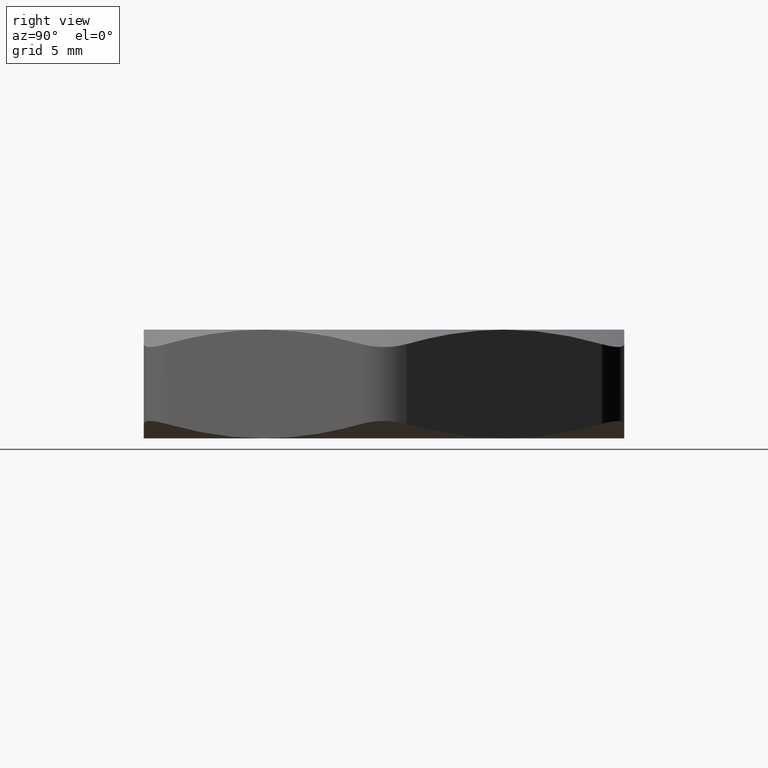
[diagram: clean part render]
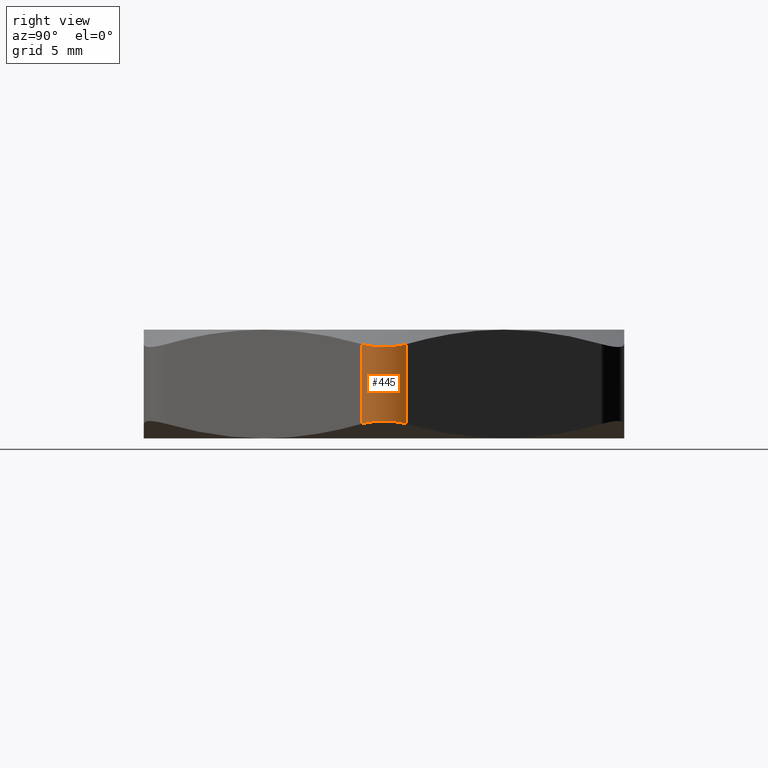
[diagram: same view with one face highlighted and labeled with its STEP entity id]
A machine part, right view. The second image highlights one B-rep face of the part: STEP entity #445.
In plain terms, the highlighted cylindrical surface (partial cylindrical patch) has radius 2.54 mm, axis along (0, 0, -1).
Its self-contained STEP definition (entity closure, byte-faithful):
#1 = CARTESIAN_POINT ( 'NONE',  ( 0.5908234888868638700, -0.03439200849698383100, 0.03565869395154949000 ) ) ;
#2 = CARTESIAN_POINT ( 'NONE',  ( 0.5831237718815220900, -0.04999999999999969700, 0.03190638126214311000 ) ) ;
#3 = CARTESIAN_POINT ( 'NONE',  ( 0.5874406010192594300, -0.04252303260584556300, 0.03402079823101471200 ) ) ;
#5 = CARTESIAN_POINT ( 'NONE',  ( 0.5831237718815220900, 0.05000000000000029400, 0.03190638126214313100 ) ) ;
#6 = CARTESIAN_POINT ( 'NONE',  ( 0.5965283244641871300, -0.008697293206108909500, 0.03840945953749355700 ) ) ;
#7 = CARTESIAN_POINT ( 'NONE',  ( 0.5874395021602044600, 0.04252493588555866100, 0.03402026000118036500 ) ) ;
#8 = CARTESIAN_POINT ( 'NONE',  ( 0.5953466426528969400, -0.01758590649365708900, 0.03784285670303592200 ) ) ;
#9 = CARTESIAN_POINT ( 'NONE',  ( 0.5965140726484460300, 0.008859642843939530300, 0.03840261062670125000 ) ) ;
#10 = CARTESIAN_POINT ( 'NONE',  ( 0.5907632841882644000, 0.03457021354705971900, 0.03562956727663186400 ) ) ;
#11 = CARTESIAN_POINT ( 'NONE',  ( 0.5953370249125271600, 0.01766644083758153700, 0.03783826634577652800 ) ) ;
#212 = EDGE_CURVE ( 'NONE', #1511, #213, #1307, .T. ) ;
#213 = VERTEX_POINT ( 'NONE', #1303 ) ;
#222 = VERTEX_POINT ( 'NONE', #1526 ) ;
#224 = EDGE_CURVE ( 'NONE', #222, #225, #1532, .T. ) ;
#225 = VERTEX_POINT ( 'NONE', #1528 ) ;
#428 = ORIENTED_EDGE ( 'NONE', *, *, #478, .F. ) ;
#429 = ORIENTED_EDGE ( 'NONE', *, *, #224, .F. ) ;
#430 = ORIENTED_EDGE ( 'NONE', *, *, #451, .F. ) ;
#431 = ORIENTED_EDGE ( 'NONE', *, *, #212, .F. ) ;
#432 = ORIENTED_EDGE ( 'NONE', *, *, #1506, .F. ) ;
#445 = ADVANCED_FACE ( 'NONE', ( #2312 ), #1266, .T. ) ;
#446 = EDGE_LOOP ( 'NONE', ( #428, #429, #430, #431, #432 ) ) ;
#451 = EDGE_CURVE ( 'NONE', #213, #222, #2528, .T. ) ;
#478 = EDGE_CURVE ( 'NONE', #225, #2287, #1794, .T. ) ;
#1263 = CARTESIAN_POINT ( 'NONE',  ( 0.5965212315030782300, -3.403670817143060400E-025, 0.2015939490848726600 ) ) ;
#1266 = CYLINDRICAL_SURFACE ( 'NONE', #1431, 0.1000000000000000200 ) ;
#1303 = CARTESIAN_POINT ( 'NONE',  ( 0.5831237718815220900, 0.05000000000000029400, 0.03190638126214313100 ) ) ;
#1304 = DIRECTION ( 'NONE',  ( 0.0000000000000000000, 0.0000000000000000000, -1.000000000000000000 ) ) ;
#1305 = VECTOR ( 'NONE', #1304, 39.37007874015748100 ) ;
#1306 = CARTESIAN_POINT ( 'NONE',  ( 0.5831237718815220900, 0.05000000000000032200, 0.2399999999999999900 ) ) ;
#1307 = LINE ( 'NONE', #1306, #1305 ) ;
#1334 = DIRECTION ( 'NONE',  ( -1.000000000000000000, 0.0000000000000000000, 0.0000000000000000000 ) ) ;
#1406 = DIRECTION ( 'NONE',  ( 0.0000000000000000000, 0.0000000000000000000, -1.000000000000000000 ) ) ;
#1431 = AXIS2_PLACEMENT_3D ( 'NONE', #1482, #1406, #1334 ) ;
#1482 = CARTESIAN_POINT ( 'NONE',  ( 0.4965212315030782000, 3.329439742278321000E-016, 0.2399999999999999900 ) ) ;
#1506 = EDGE_CURVE ( 'NONE', #2287, #1511, #1942, .T. ) ;
#1511 = VERTEX_POINT ( 'NONE', #1980 ) ;
#1526 = CARTESIAN_POINT ( 'NONE',  ( 0.5831237718815220900, -0.04999999999999969700, 0.03190638126214311000 ) ) ;
#1528 = CARTESIAN_POINT ( 'NONE',  ( 0.5831237718815220900, -0.04999999999999963500, 0.2080936187378568700 ) ) ;
#1529 = DIRECTION ( 'NONE',  ( 0.0000000000000000000, 0.0000000000000000000, 1.000000000000000000 ) ) ;
#1530 = VECTOR ( 'NONE', #1529, 39.37007874015748100 ) ;
#1531 = CARTESIAN_POINT ( 'NONE',  ( 0.5831237718815220900, -0.04999999999999967000, 0.2399999999999999900 ) ) ;
#1532 = LINE ( 'NONE', #1531, #1530 ) ;
#1787 = CARTESIAN_POINT ( 'NONE',  ( 0.5965212315030782300, -3.403670817143060400E-025, 0.2015939490848726600 ) ) ;
#1788 = CARTESIAN_POINT ( 'NONE',  ( 0.5965212315030781200, -0.008792523700346095400, 0.2015939490848726600 ) ) ;
#1789 = CARTESIAN_POINT ( 'NONE',  ( 0.5953478593261328800, -0.01761277402300885600, 0.2021565181018570600 ) ) ;
#1790 = CARTESIAN_POINT ( 'NONE',  ( 0.5907735808882251800, -0.03454572058942130500, 0.2043654439536534400 ) ) ;
#1791 = CARTESIAN_POINT ( 'NONE',  ( 0.5874461532471805200, -0.04251341586499035600, 0.2059764822439457400 ) ) ;
#1792 = CARTESIAN_POINT ( 'NONE',  ( 0.5831237718815220900, -0.04999999999999963500, 0.2080936187378568700 ) ) ;
#1794 = B_SPLINE_CURVE_WITH_KNOTS ( 'NONE', 3,
 ( #1792, #1791, #1790, #1789, #1788, #1787 ),
 .UNSPECIFIED., .F., .F.,
 ( 4, 2, 4 ),
 ( 6.505213034913026600E-019, 0.0006690574479773458900, 0.001338114895954691100 ),
 .UNSPECIFIED. ) ;
#1936 = CARTESIAN_POINT ( 'NONE',  ( 0.5831237718815220900, 0.05000000000000032900, 0.2080936187378568700 ) ) ;
#1937 = CARTESIAN_POINT ( 'NONE',  ( 0.5874339482388026800, 0.04253455555960896500, 0.2059824603533393900 ) ) ;
#1938 = CARTESIAN_POINT ( 'NONE',  ( 0.5908131712624051800, 0.03441686282104244200, 0.2043463044099834100 ) ) ;
#1939 = CARTESIAN_POINT ( 'NONE',  ( 0.5953360325567610400, 0.01763874833257984500, 0.2021622506906397300 ) ) ;
#1940 = CARTESIAN_POINT ( 'NONE',  ( 0.5965212315030781200, 0.008765464616512163100, 0.2015939490848725500 ) ) ;
#1941 = CARTESIAN_POINT ( 'NONE',  ( 0.5965212315030782300, -3.403670817143060400E-025, 0.2015939490848726600 ) ) ;
#1942 = B_SPLINE_CURVE_WITH_KNOTS ( 'NONE', 3,
 ( #1941, #1940, #1939, #1938, #1937, #1936 ),
 .UNSPECIFIED., .F., .F.,
 ( 4, 2, 4 ),
 ( 0.001338114895954691100, 0.002005113312624129500, 0.002672111729293567800 ),
 .UNSPECIFIED. ) ;
#1980 = CARTESIAN_POINT ( 'NONE',  ( 0.5831237718815220900, 0.05000000000000032900, 0.2080936187378568700 ) ) ;
#2287 = VERTEX_POINT ( 'NONE', #1263 ) ;
#2312 = FACE_OUTER_BOUND ( 'NONE', #446, .T. ) ;
#2528 = B_SPLINE_CURVE_WITH_KNOTS ( 'NONE', 3,
 ( #5, #7, #10, #11, #9, #6, #8, #1, #3, #2 ),
 .UNSPECIFIED., .F., .F.,
 ( 4, 2, 2, 2, 4 ),
 ( 6.594944350062753400E-019, 0.0006680279323233922800, 0.001336055864646783900, 0.002004083796970175900, 0.002672111729293567400 ),
 .UNSPECIFIED. ) ;